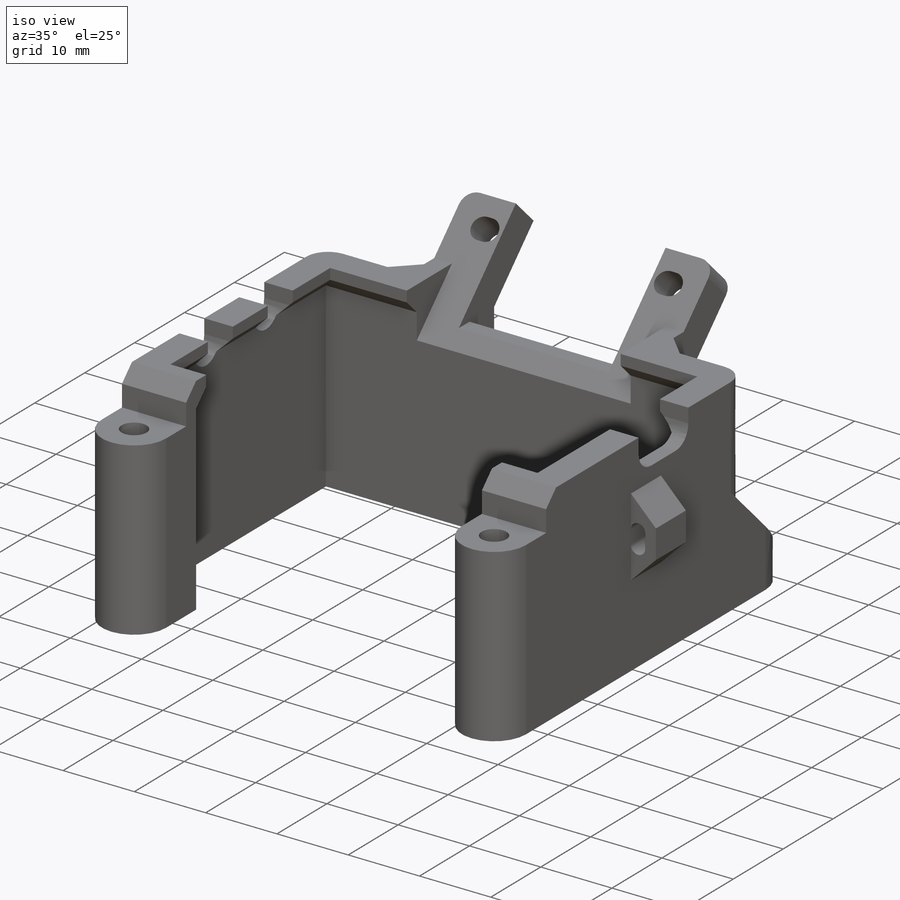
[diagram: iso view]
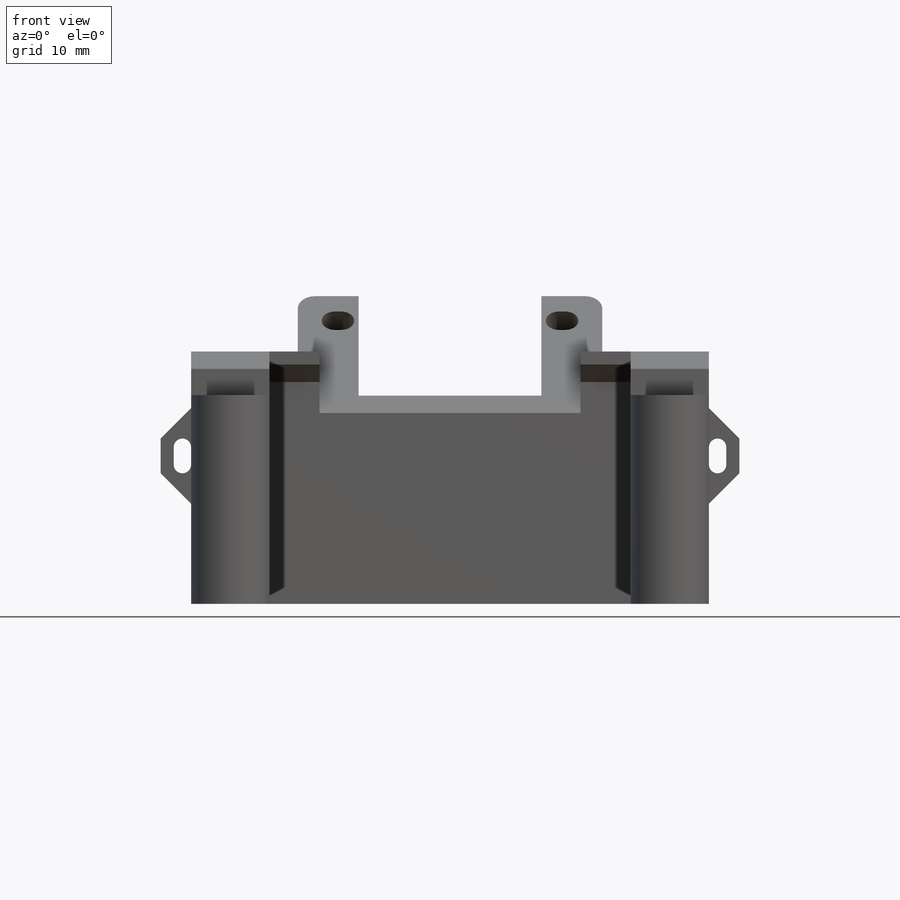
[diagram: front view]
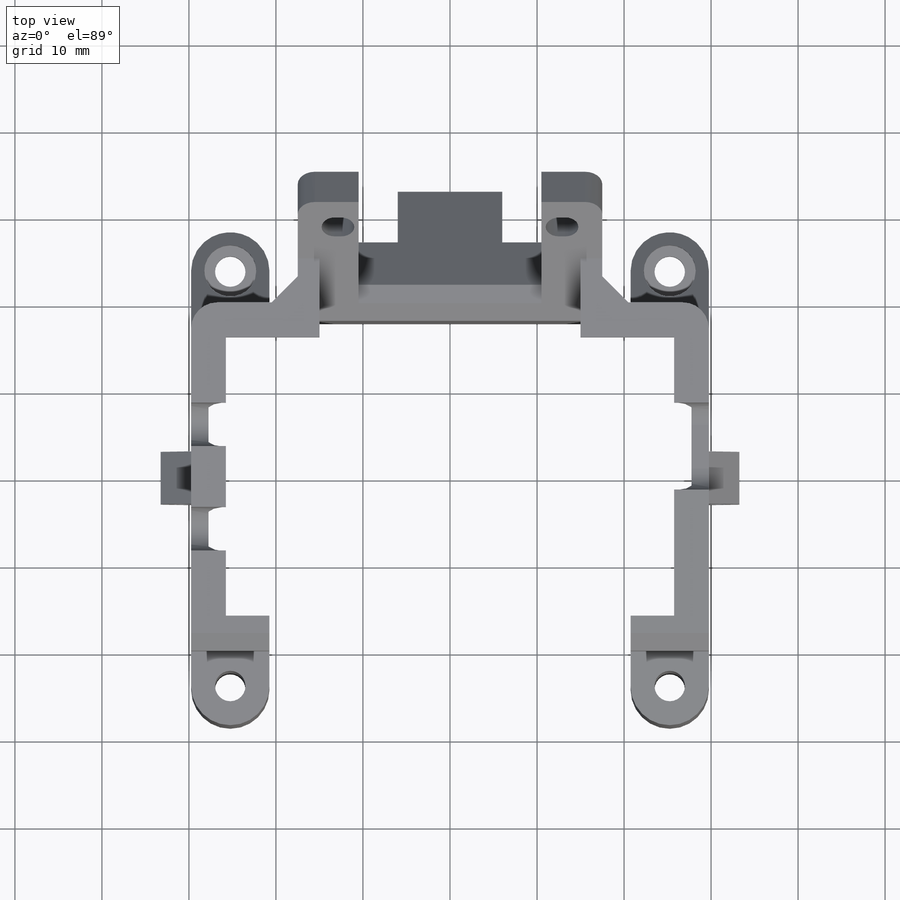
[diagram: top view]
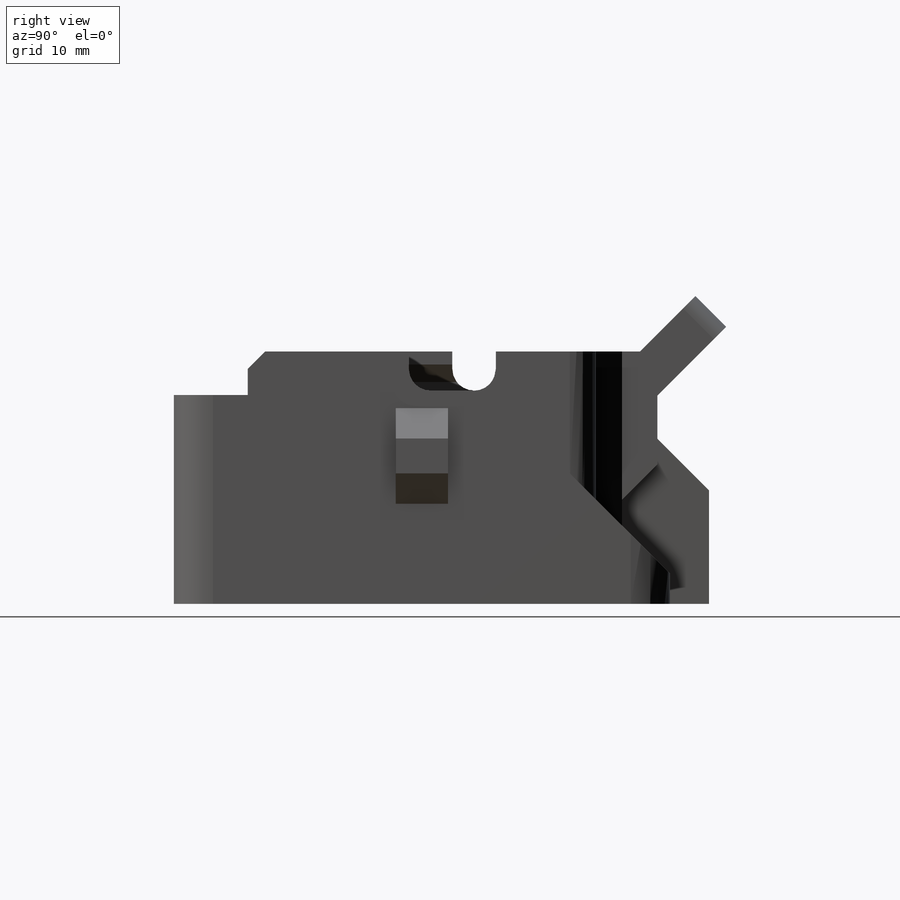
[diagram: right view]
SOLIDWORKS PART (.sldprt)
format: sldprt  version: not decoded by parser v0  size: 573,952 bytes
history: native  units: mm
features: sketch x18, extrude x10, cut_extrude x8, mirror x5, chamfer x4, fillet x2, material x1 (+12 scaffold rows collapsed)
feature tree (60):
  scaffold x12  (default folders/planes/origin — collapsed)
  material  "Material <not specified>"
  sketch  "Sketch1"  dims[D1=55.5mm D2=36.0mm D4=9.0mm D3=2.0mm]
  extrude  "Boss-Extrude1"  Depth=29mm
  sketch  "Sketch2"  dims[c1.D1=~17.214379mm c2.D1=45.0deg c2.D2=5.0mm c2.D3=5.0mm c2.D4=19.0mm c2.D5=5.0mm]
  extrude  "Boss-Extrude2"  Depth=7mm
  mirror  "Mirror1"
  sketch  "Sketch3"
  cut_extrude  "Cut-Extrude1"  Depth=30mm
  sketch  "Sketch4"  dims[c1.D2=3.0mm c1.D1=15.0mm c1.D3=25.0mm c2.D2=3.0mm c2.D4=0.75mm]
  cut_extrude  "Cut-Extrude2"  [1 undecoded]
  sketch  "Sketch7"
  extrude  "Boss-Extrude4"  Depth=2.5mm
  mirror  "Mirror2"
  sketch  "Sketch6"  dims[D1=0.0mm]
  extrude  "Boss-Extrude3"  [1 undecoded]
  chamfer  "Chamfer1"  Distance=3mm Angle=45deg
  fillet  "Fillet3"  Radius=2mm
  sketch  "Sketch8"  dims[D1=9.0mm D2=24.0mm]
  extrude  "Boss-Extrude5"  Depth=3mm
  mirror  "Mirror5"
  sketch  "Sketch11"
  extrude  "Boss-Extrude6"  Depth=24mm
  mirror  "Mirror6"
  chamfer  "Chamfer4"  Distance=9mm Angle=45deg
  sketch  "Sketch9"  dims[D1=3.5mm]
  cut_extrude  "Cut-Extrude4"  [1 undecoded]
  sketch  "Sketch10"  dims[D1=6.0mm]
  cut_extrude  "Cut-Extrude5"  Depth=3mm
  sketch  "Sketch12"  dims[D1=2.0mm]
  extrude  "Boss-Extrude7"  Depth=3.5mm
  chamfer  "Chamfer5"  Distance=2mm Angle=45deg
  fillet  "Fillet4"  Radius=3mm
  sketch  "Sketch13"  dims[D1=5.0mm D2=12.0mm D3=2.0mm D4=12.0mm]
  cut_extrude  "Cut-Extrude6"  [1 undecoded]
  sketch  "Sketch14"  dims[D1=12.0mm D2=5.0mm]
  cut_extrude  "Cut-Extrude7"  [1 undecoded]
  sketch  "Sketch15"  dims[c1.D1=3.5mm c1.D2=4.0mm c1.D3=~8.813017mm c2.D3=45.0deg c2.D4=17.0mm]
  extrude  "Boss-Extrude8"  Depth=6mm
  sketch  "Sketch16"  dims[c1.D2=1.0mm c1.D1=2.0mm c2.D2=4.0mm]
  cut_extrude  "Cut-Extrude8"  Depth=6mm
  mirror  "Mirror7"
  sketch  "Sketch17"  dims[D1=12.0mm D2=10.0mm]
  extrude  "Boss-Extrude9"  [1 undecoded]
  sketch  "Sketch18"  dims[D1=12.0mm]
  extrude  "Boss-Extrude10"  [1 undecoded]
  sketch  "Sketch19"  dims[D1=1.5mm]
  cut_extrude  "Cut-Extrude9"  [1 undecoded]
  chamfer  "Chamfer6"  Distance=2mm Angle=45deg
decode coverage: 31 of 47 modeling features carry decoded parameters
note: ~ marks probable driven/reference dimensions
note: 8 parameter values undecoded
summary: no parameter record found for 8 features
note: suppression state not decoded; provenance and decode notes live in map.json
